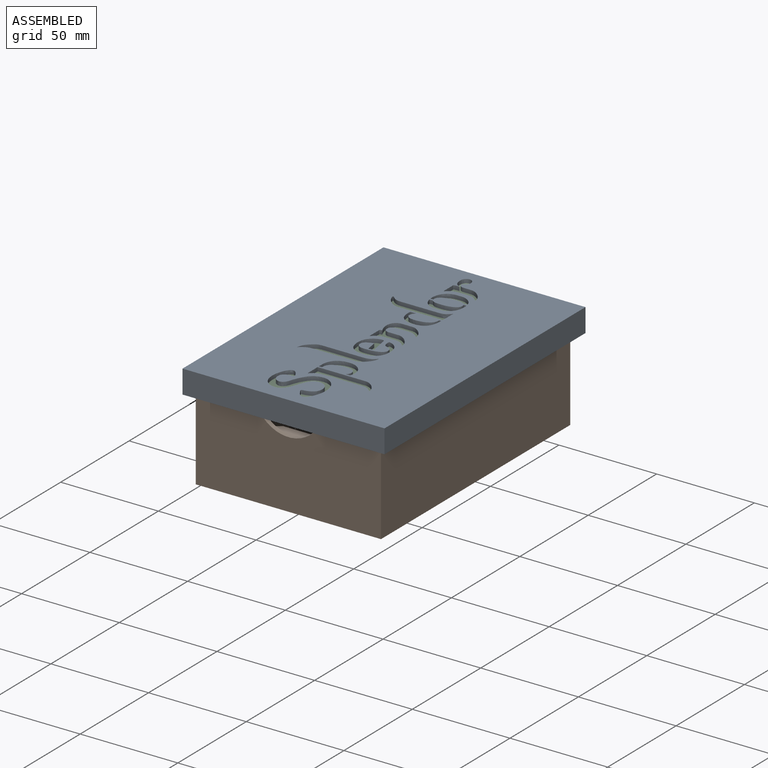
[diagram: assembled view]
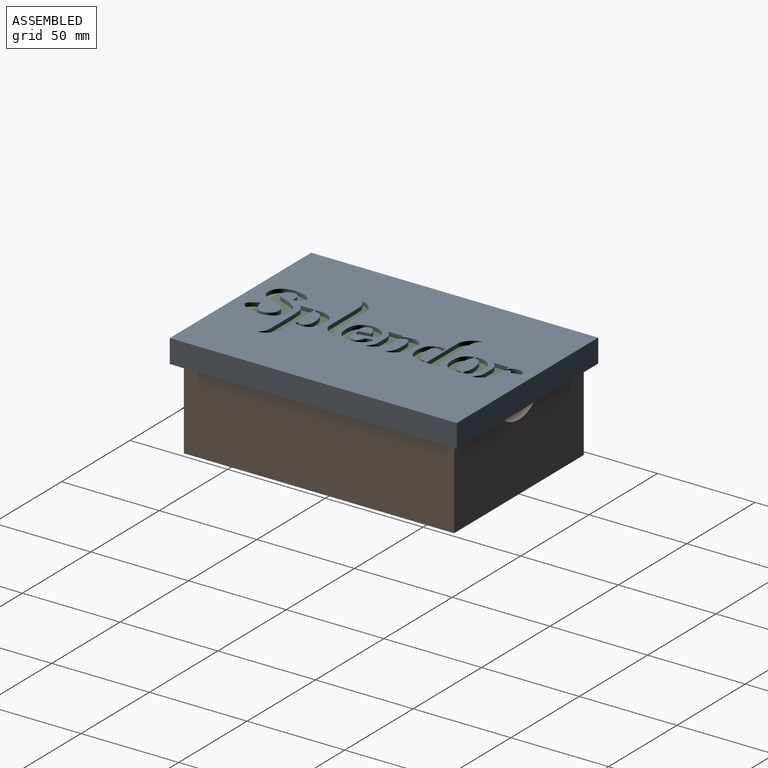
[diagram: assembled view, second angle]
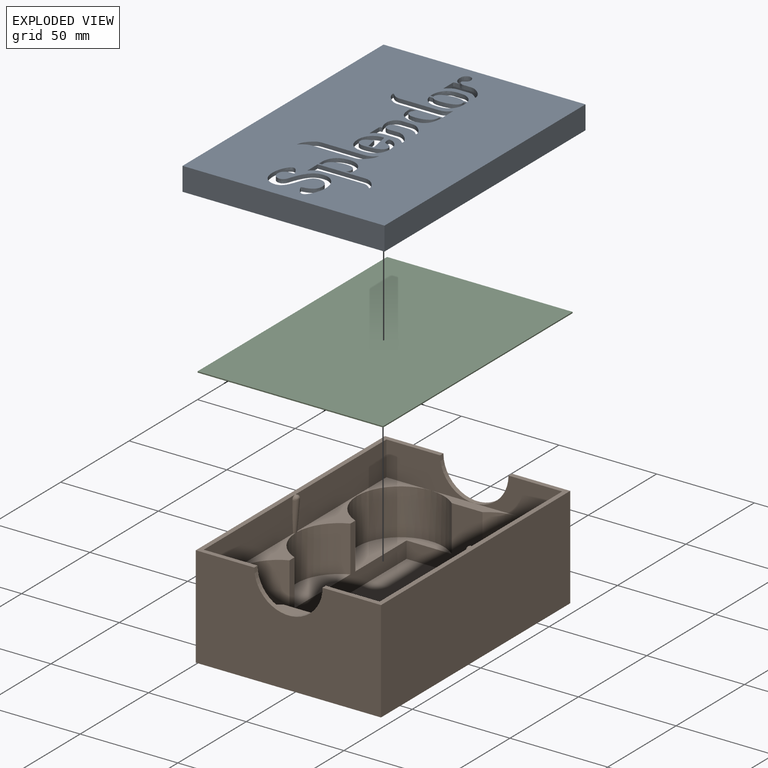
[diagram: exploded view]
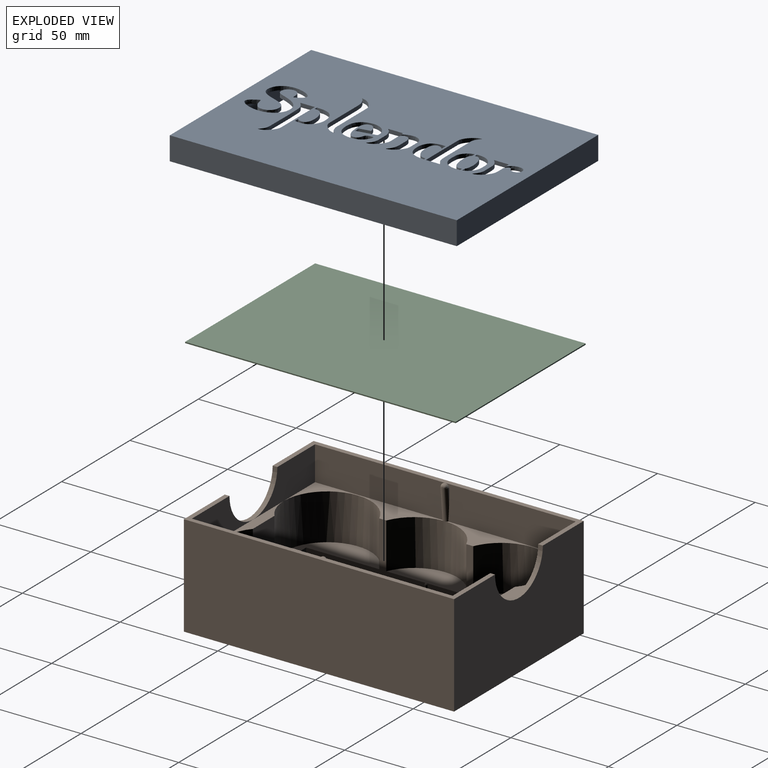
[diagram: exploded view, second angle]
ASSEMBLY  parts=3 mates=2
PART A: 68 faces, bbox 146.9x103.4x12 mm
  f0: plane 146.9x103.4mm, normal (0,0,-1), area 13814.6mm2, adj f3,f4,f5,f6,f11,f12,f13,f14
  f1: plane 138.9x95.4mm, normal (0,0,1), area 11876.1mm2, adj f7,f8,f9,f10,f11,f12,f13,f14
  f2: plane 146.9x103.4mm, normal (0,0,1), area 1938.4mm2, adj f3,f4,f5,f6,f7,f8,f9,f10
  f3: plane 103.4x12mm, normal (1,0,0), area 1240.8mm2, adj f0,f2,f4,f6
  f4: plane 146.9x12mm, normal (0,1,0), area 1762.8mm2, adj f0,f2,f3,f5
  f5: plane 103.4x12mm, normal (-1,0,0), area 1240.8mm2, adj f0,f2,f4,f6
  f6: plane 146.9x12mm, normal (0,-1,0), area 1762.8mm2, adj f0,f2,f3,f5
  f7: plane 95.4x10mm, normal (-1,0,0), area 954mm2, adj f1,f2,f8,f10
  f8: plane 138.9x10mm, normal (0,-1,0), area 1389mm2, adj f1,f2,f7,f9
  f9: plane 95.4x10mm, normal (1,0,0), area 954mm2, adj f1,f2,f8,f10
  f10: plane 138.9x10mm, normal (0,1,0), area 1389mm2, adj f1,f2,f7,f9
  f11: plane 2x0.02mm, normal (0.21,0.98,0), area 0mm2, adj f0,f1,f12,f14
  f12: extruded ~16.43x9.78mm, area 52.2mm2, adj f0,f1,f11,f13
  f13: plane 2x1.41mm, normal (-1,0,0), area 2.8mm2, adj f0,f1,f12,f15
  f14: plane 2x1.89mm, normal (-1,0,0), area 3.8mm2, adj f0,f1,f11,f16
  f15: extruded ~8.36x5.21mm, area 22.8mm2, adj f0,f1,f13,f16
  f16: extruded ~4.86x2mm, area 10.4mm2, adj f0,f1,f14,f15
  f17: extruded ~25.01x20.38mm, area 137.1mm2, adj f0,f1,f18
  f18: extruded ~25.04x17.87mm, area 135.8mm2, adj f0,f1,f17
  f19: plane 2x1.55mm, normal (1,0,0), area 3.1mm2, adj f0,f1,f20,f21
  f20: extruded ~16.32x9.11mm, area 49.4mm2, adj f0,f1,f19,f22
  f21: extruded ~12.78x4.86mm, area 31mm2, adj f0,f1,f19,f22
  f22: plane 2.04x2mm, normal (1,0,0), area 4.1mm2, adj f0,f1,f20,f21
  f23: plane 6.45x2mm, normal (0,1,0), area 12.9mm2, adj f0,f1,f24,f25
  f24: extruded ~16.66x15.67mm, area 106.3mm2, adj f0,f1,f23,f25
  f25: extruded ~2.97x2mm, area 6.7mm2, adj f0,f1,f23,f24
  f26: extruded ~7.47x7.3mm, area 34.6mm2, adj f0,f1,f27,f35
  f27: plane 5.14x2mm, normal (-1,0,0), area 10.3mm2, adj f0,f1,f26,f28
  f28: extruded ~5.36x4.04mm, area 19.1mm2, adj f0,f1,f27,f29
  f29: plane 4.98x2mm, normal (1,0,0), area 10mm2, adj f0,f1,f28,f30
  f30: extruded ~7.54x7.38mm, area 35.8mm2, adj f0,f1,f29,f31
  f31: plane 5.05x2mm, normal (-1,0,0), area 10.1mm2, adj f0,f1,f30,f32
  f32: extruded ~10.07x4.31mm, area 25.5mm2, adj f0,f1,f31,f33
  f33: plane 2x0.75mm, normal (-1,0,0), area 1.5mm2, adj f0,f1,f32,f34
  f34: extruded ~2x0.62mm, area 1.9mm2, adj f0,f1,f33,f36
  f35: plane 5.65x2mm, normal (1,0,0), area 11.3mm2, adj f0,f1,f26,f37
  f36: plane 6.56x2mm, normal (0,1,0), area 13.1mm2, adj f0,f1,f34,f37
  f37: extruded ~5.77x2.63mm, area 13.6mm2, adj f0,f1,f35,f36
  f38: extruded ~2x0.11mm, area 0.2mm2, adj f0,f1,f39,f44
  f39: plane 2x1.92mm, normal (1,0,0), area 3.8mm2, adj f0,f1,f38,f40
  f40: plane 6.86x2mm, normal (0,-1,0), area 13.7mm2, adj f0,f1,f39,f41
  f41: extruded ~6.01x2.54mm, area 14.6mm2, adj f0,f1,f40,f42
  f42: plane 19.2x2mm, normal (-1,0,0), area 38.4mm2, adj f0,f1,f41,f43
  f43: extruded ~7.45x7.27mm, area 34.5mm2, adj f0,f1,f42,f44
  f44: plane 21.33x2mm, normal (1,0,0), area 42.7mm2, adj f0,f1,f38,f43
  f45: plane 2.85x2mm, normal (-1,0,0), area 5.7mm2, adj f0,f1,f46,f48
  f46: extruded ~15.99x9.28mm, area 56.6mm2, adj f0,f1,f45,f47
  f47: plane 2x1.13mm, normal (-1,0,0), area 2.3mm2, adj f0,f1,f46,f48
  f48: extruded ~13.37x5.68mm, area 42.1mm2, adj f0,f1,f45,f47
  f49: extruded ~31.4x2.86mm, area 65.9mm2, adj f0,f1,f50,f55
  f50: extruded ~16.19x7.18mm, area 40.1mm2, adj f0,f1,f49,f51
  f51: plane 3.99x2mm, normal (-1,0,0), area 8mm2, adj f0,f1,f50,f52
  f52: extruded ~2x0.56mm, area 1.1mm2, adj f0,f1,f51,f53
  f53: extruded ~8.02x2mm, area 16mm2, adj f0,f1,f52,f54
  f54: plane 2.7x2mm, normal (-1,0,0), area 5.4mm2, adj f0,f1,f53,f55
  f55: extruded ~7.44x2mm, area 14.9mm2, adj f0,f1,f49,f54
  f56: plane 2x1.57mm, normal (1,0,0), area 3.1mm2, adj f0,f1,f57,f59
  f57: extruded ~13.37x5.74mm, area 42.3mm2, adj f0,f1,f56,f58
  f58: plane 2.15x2mm, normal (1,0,0), area 4.3mm2, adj f0,f1,f57,f59
  f59: extruded ~16.37x10.18mm, area 60.7mm2, adj f0,f1,f56,f58
  f60: extruded ~10.96x5.18mm, area 33.1mm2, adj f0,f1,f61,f63
  f61: extruded ~2.69x2mm, area 5.4mm2, adj f0,f1,f60,f62
  f62: extruded ~6.84x5.95mm, area 28.2mm2, adj f0,f1,f61,f64
  f63: extruded ~16.66x16.06mm, area 121mm2, adj f0,f1,f60,f65
  f64: plane 5.79x2mm, normal (0.18,0.98,0), area 11.8mm2, adj f0,f1,f62,f65
  f65: extruded ~2.67x2mm, area 5.4mm2, adj f0,f1,f63,f64
  f66: extruded ~34.81x10.32mm, area 78.9mm2, adj f0,f1,f67
  f67: extruded ~34.81x10.32mm, area 79.3mm2, adj f0,f1,f66
PART B: 78 faces, bbox 94.8x138.3x52 mm
  f0: plane 138.3x29.9mm, normal (0,0,1), area 463.9mm2, adj f1,f2,f4,f5,f13,f23,f27,f76
  f1: plane 94.8x52mm, normal (0,-1,0), area 4448.5mm2, adj f0,f3,f23,f24,f25,f77
  f2: plane 45x17.5mm, normal (0,1,0), area 547mm2, adj f0,f12,f13,f29,f77
  f3: plane 138.3x29.9mm, normal (0,0,1), area 463.9mm2, adj f1,f4,f9,f10,f24,f26,f28,f76
  f4: plane 94.8x52mm, normal (0,1,0), area 4448.5mm2, adj f0,f3,f23,f24,f25,f76
  f5: plane 45x17.5mm, normal (0,-1,0), area 547mm2, adj f0,f21,f22,f27,f76
  f6: plane 61.5x32mm, normal (-1,0,0), area 600.8mm2, adj f8,f17,f18,f30,f31,f38,f39,f65
  f7: plane 61.5x32mm, normal (-1,0,0), area 600.8mm2, adj f18,f19,f20,f36,f37,f38,f39,f65
  f8: plane 66.11x22.76mm, normal (0,0,1), area 341.2mm2, adj f6,f10,f26,f30,f38,f68
  f9: plane 66.75x17.5mm, normal (-1,0,0), area 1136.4mm2, adj f3,f20,f28,f59,f61,f67
  f10: plane 66.75x17.5mm, normal (-1,0,0), area 1136.4mm2, adj f3,f8,f26,f59,f60,f68
  f11: plane 61.5x32mm, normal (1,0,0), area 600.8mm2, adj f14,f15,f22,f31,f32,f34,f39,f47
  f12: plane 66.11x22.76mm, normal (0,0,1), area 341.2mm2, adj f2,f13,f33,f34,f35,f49
  f13: plane 66.75x17.5mm, normal (1,0,0), area 1136.4mm2, adj f0,f2,f12,f40,f41,f49
  f14: plane 40.91x13.5mm, normal (0,0,1), area 398.6mm2, adj f11,f33,f34
  f15: plane 42.71x36.61mm, normal (0,0,1), area 490.9mm2, adj f11,f31,f32
  f16: plane 42.71x36.61mm, normal (0,0,1), area 490.9mm2, adj f33,f35,f36
  f17: plane 42.71x36.61mm, normal (0,0,1), area 490.9mm2, adj f6,f30,f31
  f18: plane 40.91x13.5mm, normal (0,0,1), area 398.6mm2, adj f6,f7,f38
  f19: plane 42.71x36.61mm, normal (0,0,1), area 490.9mm2, adj f7,f36,f37
  f20: plane 66.11x22.76mm, normal (0,0,1), area 341.2mm2, adj f7,f9,f28,f37,f38,f67
  f21: plane 44.5x5.25mm, normal (0,0,1), area 130.5mm2, adj f5,f26,f30,f31,f32
  f22: plane 66.11x22.76mm, normal (0,0,1), area 341.2mm2, adj f5,f11,f27,f32,f34,f50
  f23: plane 138.3x52mm, normal (-1,0,0), area 7191.6mm2, adj f0,f1,f4,f25
  f24: plane 138.3x52mm, normal (1,0,0), area 7191.6mm2, adj f1,f3,f4,f25
  f25: plane 138.3x94.8mm, normal (0,0,-1), area 13110.8mm2, adj f1,f4,f23,f24
  f26: plane 45x17.5mm, normal (0,-1,0), area 547mm2, adj f3,f8,f10,f21,f76
  f27: plane 66.75x17.5mm, normal (1,0,0), area 1136.4mm2, adj f0,f5,f22,f40,f43,f50
  f28: plane 45x17.5mm, normal (0,1,0), area 547mm2, adj f3,f9,f20,f29,f77
  f29: plane 44.5x5.25mm, normal (0,0,1), area 130.5mm2, adj f2,f28,f35,f36,f37
  f30: cylinder r=22.25mm len=42.71mm, axis (0,0,1), area 1798mm2, adj f6,f8,f17,f21,f31
  f31: plane 62x32mm, normal (0,-1,0), area 898.1mm2, adj f6,f11,f15,f17,f21,f30,f32,f39
  f32: cylinder r=22.25mm len=42.71mm, axis (0,0,1), area 1798mm2, adj f11,f15,f21,f22,f31
  f33: plane 61.5x32mm, normal (1,0,0), area 600.8mm2, adj f12,f14,f16,f34,f35,f36,f39,f47
  f34: cylinder r=22.25mm len=40.91mm, axis (0,0,1), area 1220mm2, adj f11,f12,f14,f22,f33,f42
  f35: cylinder r=22.25mm len=42.71mm, axis (0,0,1), area 1798mm2, adj f12,f16,f29,f33,f36
  f36: plane 62x32mm, normal (0,1,0), area 898.1mm2, adj f7,f16,f19,f29,f33,f35,f37,f39
  f37: cylinder r=22.25mm len=42.71mm, axis (0,0,1), area 1798mm2, adj f7,f19,f20,f29,f36
  f38: cylinder r=22.25mm len=40.91mm, axis (0,0,1), area 1220mm2, adj f6,f7,f8,f18,f20,f58
  f39: plane 123x62mm, normal (0,0,1), area 7624.2mm2, adj f6,f7,f11,f31,f33,f36,f47,f65
  f40: cylinder r=2mm len=4mm, axis (-1,0,0), area 2.8mm2, adj f13,f27,f41,f43,f46,f51,f52
  f41: plane 1.01x0.09mm, normal (0,-1,0), area 0mm2, adj f13,f40,f49
  f42: plane 1.3x0.09mm, normal (0,0,-1), area 0.1mm2, adj f34,f45,f49,f50
  f43: plane 1.01x0.09mm, normal (0,1,0), area 0mm2, adj f27,f40,f50
  f44: plane 0.6x0.54mm, normal (1,0,0), area 0.2mm2, adj f46,f55,f56,f57
  f45: plane 15.44x1.4mm, normal (1,0,-0.09), area 3.1mm2, adj f42,f49,f50,f57
  f46: torus R=0.6mm, axis (1,0,0), area 3.4mm2, adj f40,f44,f53,f54
  f47: cylinder r=0.75mm len=7.75mm, axis (0,0,1), area 18.3mm2, adj f11,f33,f39,f48
  f48: sphere r=0.75mm, area 1.8mm2, adj f11,f33,f47
  f49: cylinder r=1.9mm len=16.12mm, axis (-0.09,0,-1), area 37mm2, adj f12,f13,f41,f42,f45,f51,f55
  f50: cylinder r=1.9mm len=16.12mm, axis (-0.09,0,-1), area 37mm2, adj f22,f27,f42,f43,f45,f52,f56
  f51: bspline ~1.89x1.86mm, area 2.3mm2, adj f40,f49,f53
  f52: bspline ~1.89x1.86mm, area 2.3mm2, adj f40,f50,f54
  f53: sphere r=1.4mm, area 0.7mm2, adj f46,f51,f55
  f54: sphere r=1.4mm, area 0.7mm2, adj f46,f52,f56
  f55: bspline ~0.76x0.58mm, area 0.2mm2, adj f44,f49,f53,f57
  f56: bspline ~0.76x0.58mm, area 0.2mm2, adj f44,f50,f54,f57
  f57: cylinder r=1.4mm len=0.2mm, axis (0,1,0), area 0mm2, adj f44,f45,f55,f56
  f58: plane 1.3x0.09mm, normal (0,0,-1), area 0.1mm2, adj f38,f63,f67,f68
  f59: cylinder r=2mm len=4mm, axis (1,0,0), area 2.8mm2, adj f9,f10,f60,f61,f64,f69,f70
  f60: plane 1.01x0.09mm, normal (0,1,0), area 0mm2, adj f10,f59,f68
  f61: plane 1.01x0.09mm, normal (0,-1,0), area 0mm2, adj f9,f59,f67
  f62: plane 0.6x0.54mm, normal (-1,0,0), area 0.2mm2, adj f64,f73,f74,f75
  f63: plane 15.44x1.4mm, normal (-1,0,-0.09), area 3.1mm2, adj f58,f67,f68,f75
  f64: torus R=0.6mm, axis (-1,0,0), area 3.4mm2, adj f59,f62,f71,f72
  f65: cylinder r=0.75mm len=7.75mm, axis (0,0,-1), area 18.3mm2, adj f6,f7,f39,f66
  f66: sphere r=0.75mm, area 1.8mm2, adj f6,f7,f65
  f67: cylinder r=1.9mm len=16.12mm, axis (-0.09,0,1), area 37mm2, adj f9,f20,f58,f61,f63,f70,f74
  f68: cylinder r=1.9mm len=16.12mm, axis (-0.09,0,1), area 37mm2, adj f8,f10,f58,f60,f63,f69,f73
  f69: bspline ~1.89x1.86mm, area 2.3mm2, adj f59,f68,f71
  f70: bspline ~1.89x1.86mm, area 2.3mm2, adj f59,f67,f72
  f71: sphere r=1.4mm, area 0.7mm2, adj f64,f69,f73
  f72: sphere r=1.4mm, area 0.7mm2, adj f64,f70,f74
  f73: bspline ~0.76x0.58mm, area 0.2mm2, adj f62,f68,f71,f75
  f74: bspline ~0.76x0.58mm, area 0.2mm2, adj f62,f67,f72,f75
  f75: cylinder r=1.4mm len=0.2mm, axis (0,1,0), area 0mm2, adj f62,f63,f73,f74
  f76: cylinder r=17.5mm len=35mm, axis (0,-1,0), area 131.9mm2, adj f0,f3,f4,f5,f26
  f77: cylinder r=17.5mm len=35mm, axis (0,1,0), area 131.9mm2, adj f0,f1,f2,f3,f28
PART C: 6 faces, bbox 138.5x95x0.6 mm
  f0: plane 138.5x0.6mm, normal (0,-1,0), area 83.1mm2, adj f1,f3,f4,f5
  f1: plane 95x0.6mm, normal (1,0,0), area 57mm2, adj f0,f2,f4,f5
  f2: plane 138.5x0.6mm, normal (0,1,0), area 83.1mm2, adj f1,f3,f4,f5
  f3: plane 95x0.6mm, normal (-1,0,0), area 57mm2, adj f0,f2,f4,f5
  f4: plane 138.5x95mm, normal (0,0,1), area 13157.5mm2, adj f0,f1,f2,f3
  f5: plane 138.5x95mm, normal (0,0,-1), area 13157.5mm2, adj f0,f1,f2,f3
PLACE A rot(axis=(0.71,0.71,0),180deg) t=(0.3,0.3,-10)mm
PLACE B at identity
PLACE C rot(axis=(0,0,1),90deg) t=(0.34,1.05,-0.6)mm
MATE fastened A.f1 <-> B.f0  axis (0,0,-1) through (-47.4,-69.15,0)mm
MATE fastened C.f4 <-> A.f1  axis (0,0,1) through (0.34,1.05,0)mm
